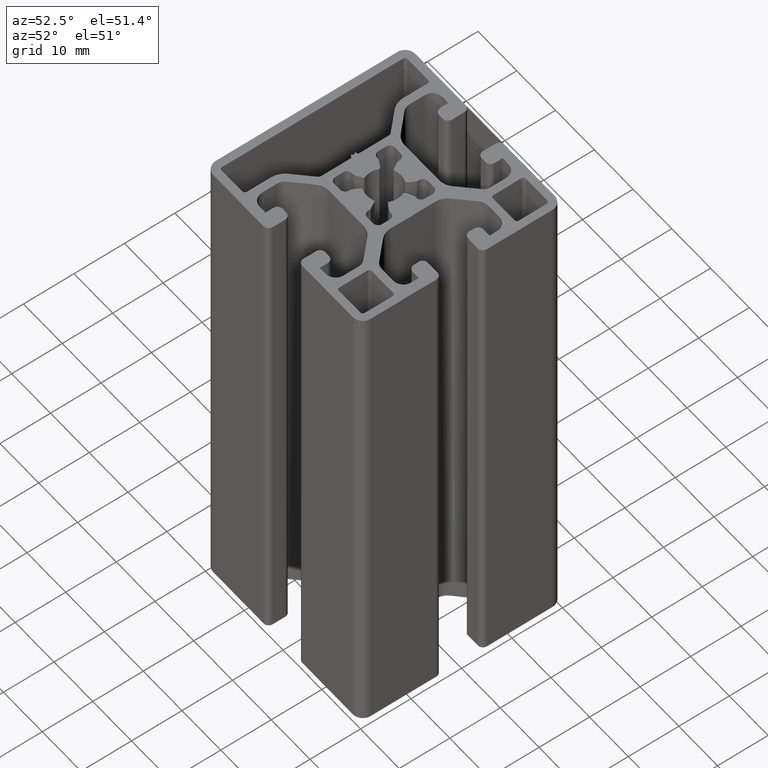
[diagram: clean part render]
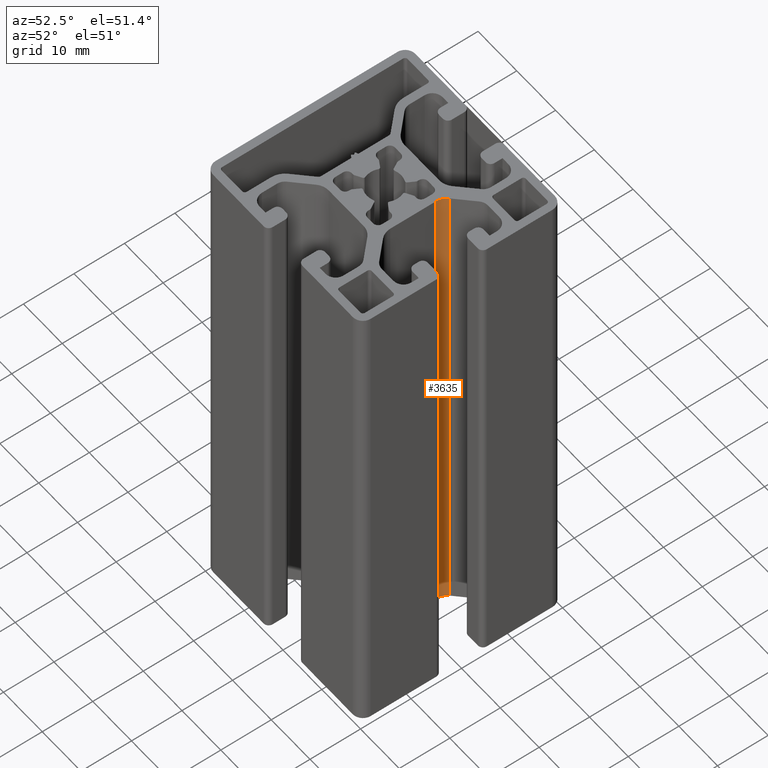
[diagram: same view with one face highlighted and labeled with its STEP entity id]
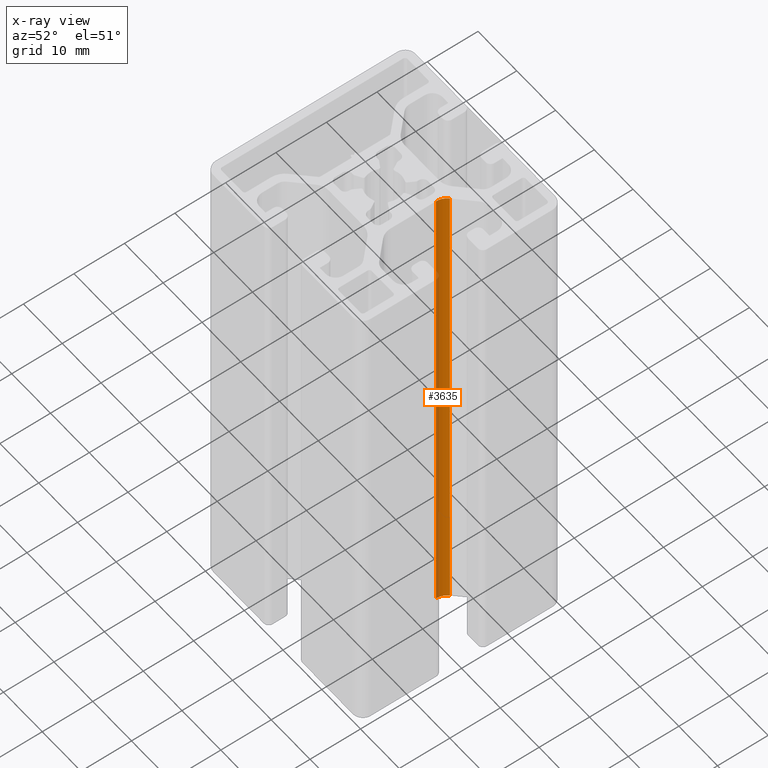
[diagram: x-ray of the same camera — body ghosted, the highlighted face saturated]
A machine part, auxiliary view. The second image highlights one B-rep face of the part: STEP entity #3635.
The next image is the same camera in x-ray: the body ghosted, the highlighted face saturated — about 18% of this face is hidden behind the body in this view.
In plain terms, the highlighted cylindrical surface (edge-blend (fillet) strip) has radius 3 mm, axis along (0, 0, 1).
Its self-contained STEP definition (entity closure, byte-faithful):
#272=FACE_OUTER_BOUND('',#455,.T.);
#455=EDGE_LOOP('',(#2921,#2922,#2923,#2924));
#802=LINE('',#6053,#1165);
#803=LINE('',#6059,#1166);
#1165=VECTOR('',#4959,100.);
#1166=VECTOR('',#4966,100.);
#1376=CIRCLE('',#3977,2.99999999999999);
#1377=CIRCLE('',#3978,2.99999999999999);
#1712=VERTEX_POINT('',#6049);
#1713=VERTEX_POINT('',#6051);
#1714=VERTEX_POINT('',#6055);
#1715=VERTEX_POINT('',#6057);
#2226=EDGE_CURVE('',#1713,#1712,#802,.T.);
#2227=EDGE_CURVE('',#1712,#1714,#1376,.T.);
#2228=EDGE_CURVE('',#1715,#1713,#1377,.T.);
#2229=EDGE_CURVE('',#1715,#1714,#803,.T.);
#2921=ORIENTED_EDGE('',*,*,#2227,.F.);
#2922=ORIENTED_EDGE('',*,*,#2226,.F.);
#2923=ORIENTED_EDGE('',*,*,#2228,.F.);
#2924=ORIENTED_EDGE('',*,*,#2229,.T.);
#3469=CYLINDRICAL_SURFACE('',#3976,2.99999999999999);
#3635=ADVANCED_FACE('',(#272),#3469,.F.);
#3976=AXIS2_PLACEMENT_3D('',#6054,#4960,#4961);
#3977=AXIS2_PLACEMENT_3D('',#6056,#4962,#4963);
#3978=AXIS2_PLACEMENT_3D('',#6058,#4964,#4965);
#4959=DIRECTION('',(0.,0.,1.));
#4960=DIRECTION('center_axis',(0.,0.,1.));
#4961=DIRECTION('ref_axis',(-0.707106781186548,0.707106781186547,0.));
#4962=DIRECTION('center_axis',(0.,0.,-1.));
#4963=DIRECTION('ref_axis',(-0.707106781186548,0.707106781186547,0.));
#4964=DIRECTION('center_axis',(0.,0.,1.));
#4965=DIRECTION('ref_axis',(-0.707106781186548,0.707106781186547,0.));
#4966=DIRECTION('',(0.,0.,1.));
#6049=CARTESIAN_POINT('',(7.49999999999999,4.48957935991435,100.));
#6051=CARTESIAN_POINT('',(7.49999999999999,4.48957935991435,0.));
#6053=CARTESIAN_POINT('',(7.49999999999999,4.48957935991435,0.));
#6054=CARTESIAN_POINT('Origin',(10.5,4.48957935991436,0.));
#6055=CARTESIAN_POINT('',(8.37867965644034,6.61089970347399,100.));
#6056=CARTESIAN_POINT('Origin',(10.5,4.48957935991436,100.));
#6057=CARTESIAN_POINT('',(8.37867965644034,6.61089970347399,0.));
#6058=CARTESIAN_POINT('Origin',(10.5,4.48957935991436,0.));
#6059=CARTESIAN_POINT('',(8.37867965644034,6.61089970347399,0.));